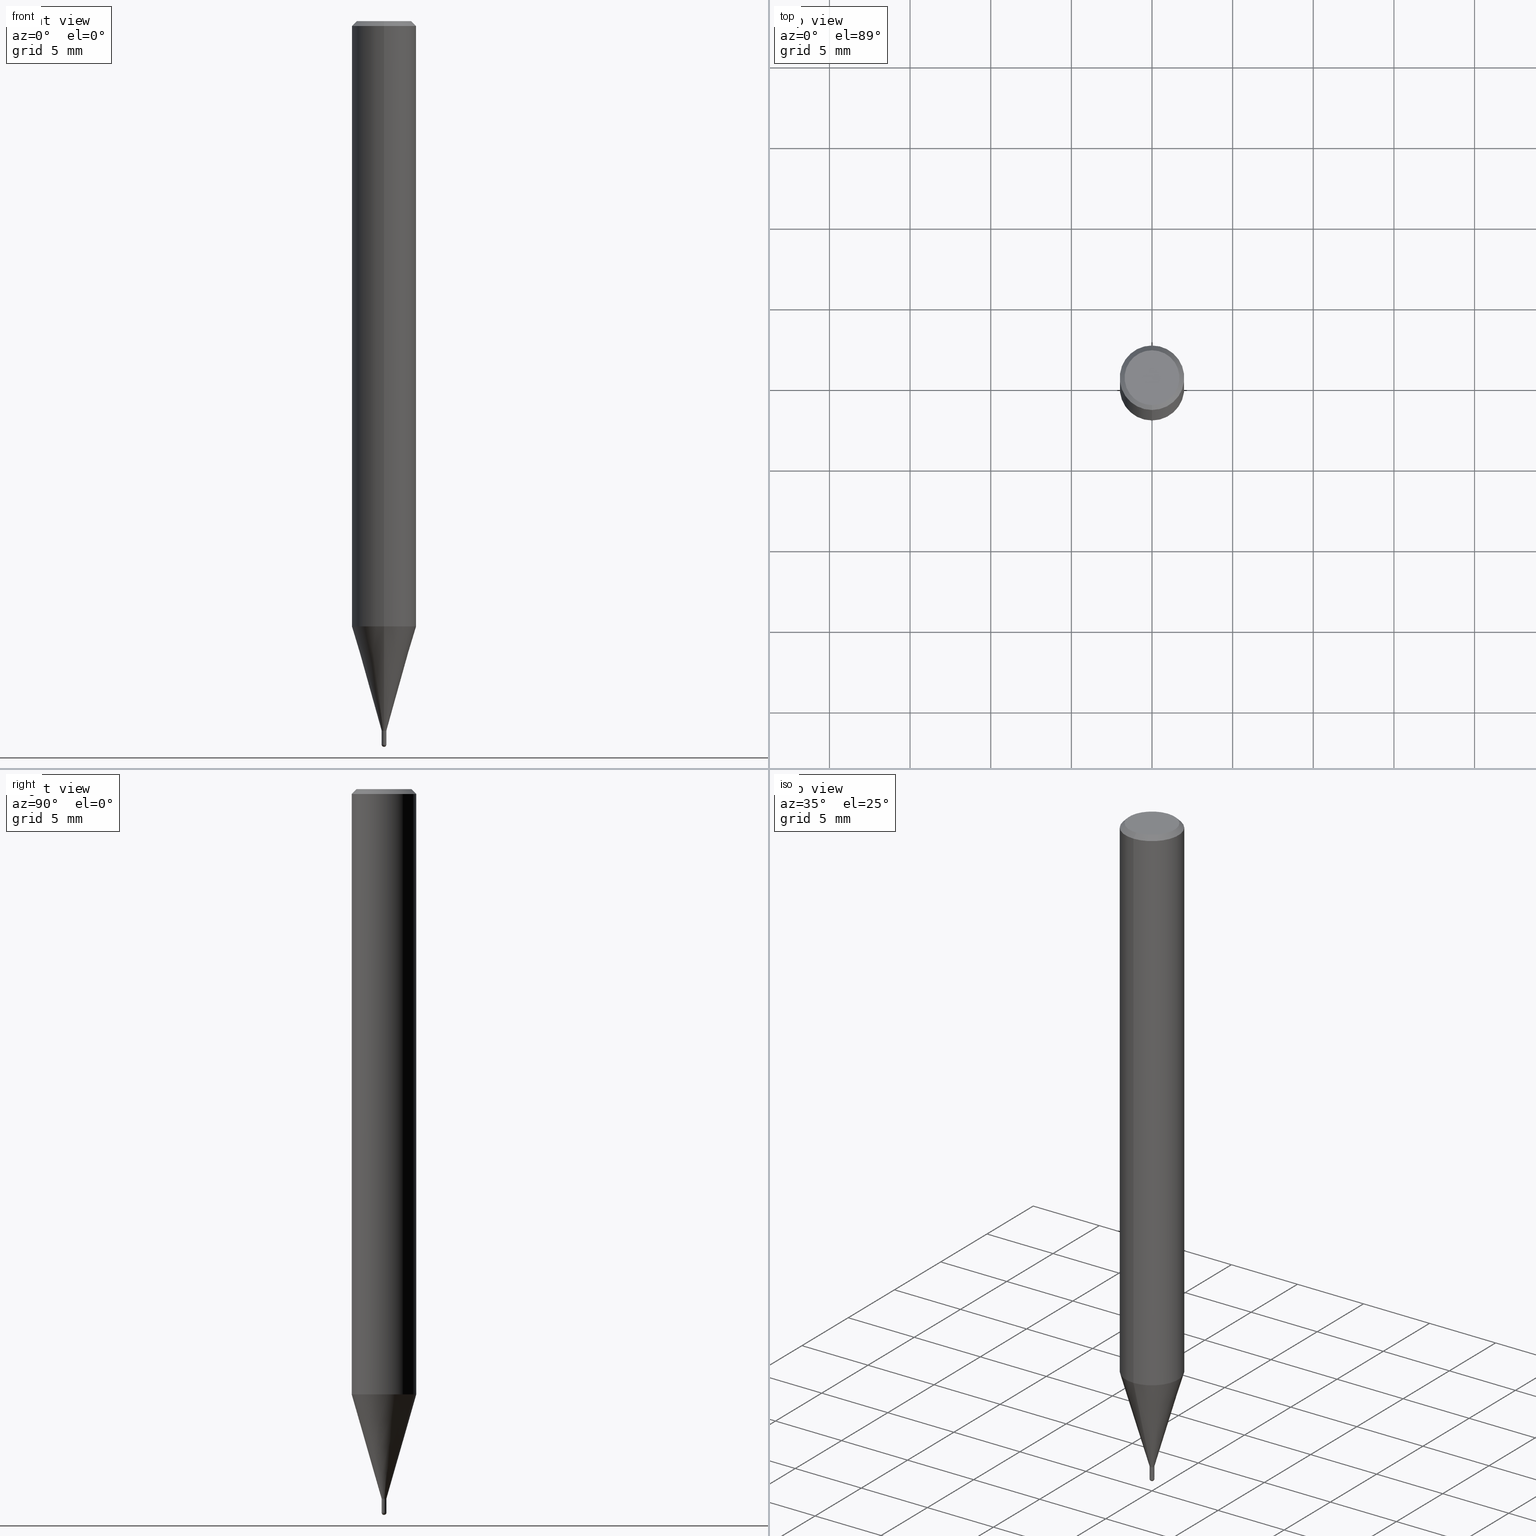
[diagram: canonical four-view strip — front | top / right | iso, engineering-drawing reading convention]
A machine part, canonical four-view strip (front | top / right | iso — engineering-drawing reading convention). The complete STEP part file that produces these views, byte-faithful:
ISO-10303-21;
HEADER;
FILE_DESCRIPTION(('no description'),'unknown implementation level');
FILE_NAME('HSLB2003-010-Huellk.stp','  ',('CIMSOURCE GmbH'),('CADClick - KiM GmbH - www.kimweb.de'),'unknown preprocess','ACIS','unknown authorization');
FILE_SCHEMA(('automotive_design'));
ENDSEC;
DATA;
#1=MECHANICAL_DESIGN_GEOMETRIC_PRESENTATION_REPRESENTATION(' ',(#14,#15,#16,#17,#18,#19,#20,#21,#22,#23,#24,#25,#26,#27,#28,#29,#30,#31,#32,#33,#34,#35,#36,#37,#38,#39,#40,#41,#42,#43,#44,#45,#46,#47,#48,#49,#50,#51,#52,#53,#54,#55,#56,#57,#58,#59,#60,#61,#62,#63,#64,#65,#66,#67,#68,#69,#70,#71,#72,#73,#74),#10);
#2=PRODUCT_DEFINITION_CONTEXT('',#75,'design');
#3=APPLICATION_PROTOCOL_DEFINITION('INTERNATIONAL STANDARD','automotive_design',1994,#75);
#4=PRODUCT_CATEGORY_RELATIONSHIP('NONE','NONE',#76,#77);
#5=SHAPE_DEFINITION_REPRESENTATION(#78,#79);
#6=PRODUCT_DEFINITION_CONTEXT('',#80,'design');
#7=APPLICATION_PROTOCOL_DEFINITION('INTERNATIONAL STANDARD','automotive_design',1994,#80);
#8=PRODUCT_CATEGORY_RELATIONSHIP('NONE','NONE',#81,#82);
#9=SHAPE_DEFINITION_REPRESENTATION(#83,#84);
#10= (GEOMETRIC_REPRESENTATION_CONTEXT(3)GLOBAL_UNCERTAINTY_ASSIGNED_CONTEXT((#87))GLOBAL_UNIT_ASSIGNED_CONTEXT((#89,#90,#91))REPRESENTATION_CONTEXT('NONE','WORKSPACE'));
#14=STYLED_ITEM('',(#93),#94);
#15=STYLED_ITEM('',(#95),#96);
#16=STYLED_ITEM('',(#97),#98);
#17=STYLED_ITEM('',(#99),#100);
#18=STYLED_ITEM('',(#101),#102);
#19=STYLED_ITEM('',(#103),#104);
#20=STYLED_ITEM('',(#105),#106);
#21=STYLED_ITEM('',(#107),#108);
#22=STYLED_ITEM('',(#109),#110);
#23=STYLED_ITEM('',(#111),#112);
#24=STYLED_ITEM('',(#113),#114);
#25=STYLED_ITEM('',(#115),#116);
#26=STYLED_ITEM('',(#117),#118);
#27=STYLED_ITEM('',(#119),#120);
#28=STYLED_ITEM('',(#121),#122);
#29=STYLED_ITEM('',(#123),#124);
#30=STYLED_ITEM('',(#125),#126);
#31=STYLED_ITEM('',(#127),#128);
#32=STYLED_ITEM('',(#129),#130);
#33=STYLED_ITEM('',(#131),#132);
#34=STYLED_ITEM('',(#133),#134);
#35=STYLED_ITEM('',(#135),#136);
#36=STYLED_ITEM('',(#137),#138);
#37=STYLED_ITEM('',(#139),#140);
#38=STYLED_ITEM('',(#141),#142);
#39=STYLED_ITEM('',(#143),#144);
#40=STYLED_ITEM('',(#145),#146);
#41=STYLED_ITEM('',(#147),#148);
#42=STYLED_ITEM('',(#149),#150);
#43=STYLED_ITEM('',(#151),#152);
#44=STYLED_ITEM('',(#153),#154);
#45=STYLED_ITEM('',(#155),#156);
#46=STYLED_ITEM('',(#157),#158);
#47=STYLED_ITEM('',(#159),#160);
#48=STYLED_ITEM('',(#161),#162);
#49=STYLED_ITEM('',(#163),#164);
#50=STYLED_ITEM('',(#165),#166);
#51=STYLED_ITEM('',(#167),#168);
#52=STYLED_ITEM('',(#169),#170);
#53=STYLED_ITEM('',(#171),#172);
#54=STYLED_ITEM('',(#173),#174);
#55=STYLED_ITEM('',(#175),#176);
#56=STYLED_ITEM('',(#177),#178);
#57=STYLED_ITEM('',(#179),#180);
#58=STYLED_ITEM('',(#181),#182);
#59=STYLED_ITEM('',(#183),#184);
#60=STYLED_ITEM('',(#185),#186);
#61=STYLED_ITEM('',(#187),#188);
#62=STYLED_ITEM('',(#189),#190);
#63=STYLED_ITEM('',(#191),#192);
#64=STYLED_ITEM('',(#193),#194);
#65=STYLED_ITEM('',(#195),#196);
#66=STYLED_ITEM('',(#197),#198);
#67=STYLED_ITEM('',(#199),#200);
#68=STYLED_ITEM('',(#201),#202);
#69=STYLED_ITEM('',(#203),#204);
#70=STYLED_ITEM('',(#205),#206);
#71=STYLED_ITEM('',(#207),#208);
#72=STYLED_ITEM('',(#209),#210);
#73=STYLED_ITEM('',(#211),#212);
#74=STYLED_ITEM('',(#213),#214);
#75=APPLICATION_CONTEXT(' ');
#76=PRODUCT_CATEGORY('part','NONE');
#77=PRODUCT_RELATED_PRODUCT_CATEGORY('detail',' ',(#215));
#78=PRODUCT_DEFINITION_SHAPE('NONE','NONE',#216);
#79=ADVANCED_BREP_SHAPE_REPRESENTATION('1',(#188,#217),#10);
#80=APPLICATION_CONTEXT(' ');
#81=PRODUCT_CATEGORY('part','NONE');
#82=PRODUCT_RELATED_PRODUCT_CATEGORY('detail',' ',(#218));
#83=PRODUCT_DEFINITION_SHAPE('NONE','NONE',#219);
#84=ADVANCED_BREP_SHAPE_REPRESENTATION('2',(#176,#220),#10);
#87=UNCERTAINTY_MEASURE_WITH_UNIT(LENGTH_MEASURE(1.0E-006),#89,'','');
#89= (CONVERSION_BASED_UNIT('MILLIMETRE',#223)LENGTH_UNIT()NAMED_UNIT(#226));
#90= (NAMED_UNIT(#228)PLANE_ANGLE_UNIT()SI_UNIT($,.RADIAN.));
#91= (NAMED_UNIT(#228)SOLID_ANGLE_UNIT()SI_UNIT($,.STERADIAN.));
#93=PRESENTATION_STYLE_ASSIGNMENT((#234));
#94=VERTEX_POINT('',#235);
#95=PRESENTATION_STYLE_ASSIGNMENT((#236));
#96=EDGE_CURVE('',#190,#186,#237,.T.);
#97=PRESENTATION_STYLE_ASSIGNMENT((#238));
#98=EDGE_CURVE('',#116,#100,#239,.T.);
#99=PRESENTATION_STYLE_ASSIGNMENT((#240));
#100=VERTEX_POINT('',#241);
#101=PRESENTATION_STYLE_ASSIGNMENT((#242));
#102=VERTEX_POINT('',#243);
#103=PRESENTATION_STYLE_ASSIGNMENT((#244));
#104=EDGE_CURVE('',#152,#136,#245,.T.);
#105=PRESENTATION_STYLE_ASSIGNMENT((#246));
#106=EDGE_CURVE('',#152,#102,#247,.T.);
#107=PRESENTATION_STYLE_ASSIGNMENT((#248));
#108=ADVANCED_FACE('',(#249),#250,.T.);
#109=PRESENTATION_STYLE_ASSIGNMENT((#251));
#110=ADVANCED_FACE('',(#252),#253,.T.);
#111=PRESENTATION_STYLE_ASSIGNMENT((#254));
#112=ADVANCED_FACE('',(#255),#256,.T.);
#113=PRESENTATION_STYLE_ASSIGNMENT((#257));
#114=VERTEX_POINT('',#258);
#115=PRESENTATION_STYLE_ASSIGNMENT((#259));
#116=VERTEX_POINT('',#260);
#117=PRESENTATION_STYLE_ASSIGNMENT((#261));
#118=EDGE_CURVE('',#116,#170,#262,.T.);
#119=PRESENTATION_STYLE_ASSIGNMENT((#263));
#120=EDGE_CURVE('',#184,#94,#264,.T.);
#121=PRESENTATION_STYLE_ASSIGNMENT((#265));
#122=EDGE_CURVE('',#156,#136,#266,.T.);
#123=PRESENTATION_STYLE_ASSIGNMENT((#267));
#124=ADVANCED_FACE('',(#268),#269,.T.);
#125=PRESENTATION_STYLE_ASSIGNMENT((#270));
#126=VERTEX_POINT('',#271);
#127=PRESENTATION_STYLE_ASSIGNMENT((#272));
#128=ADVANCED_FACE('',(#273),#274,.T.);
#129=PRESENTATION_STYLE_ASSIGNMENT((#275));
#130=ADVANCED_FACE('',(#276),#277,.T.);
#131=PRESENTATION_STYLE_ASSIGNMENT((#278));
#132=ADVANCED_FACE('',(#279),#280,.T.);
#133=PRESENTATION_STYLE_ASSIGNMENT((#281));
#134=EDGE_CURVE('',#136,#114,#282,.T.);
#135=PRESENTATION_STYLE_ASSIGNMENT((#283));
#136=VERTEX_POINT('',#284);
#137=PRESENTATION_STYLE_ASSIGNMENT((#285));
#138=EDGE_CURVE('',#170,#190,#286,.T.);
#139=PRESENTATION_STYLE_ASSIGNMENT((#287));
#140=VERTEX_POINT('',#288);
#141=PRESENTATION_STYLE_ASSIGNMENT((#289));
#142=EDGE_CURVE('',#114,#208,#290,.T.);
#143=PRESENTATION_STYLE_ASSIGNMENT((#291));
#144=ADVANCED_FACE('',(#292),#293,.T.);
#145=PRESENTATION_STYLE_ASSIGNMENT((#294));
#146=EDGE_CURVE('',#208,#156,#295,.T.);
#147=PRESENTATION_STYLE_ASSIGNMENT((#296));
#148=EDGE_CURVE('',#170,#116,#297,.T.);
#149=PRESENTATION_STYLE_ASSIGNMENT((#298));
#150=EDGE_CURVE('',#186,#116,#299,.T.);
#151=PRESENTATION_STYLE_ASSIGNMENT((#300));
#152=VERTEX_POINT('',#301);
#153=PRESENTATION_STYLE_ASSIGNMENT((#302));
#154=ADVANCED_FACE('',(#303),#304,.T.);
#155=PRESENTATION_STYLE_ASSIGNMENT((#305));
#156=VERTEX_POINT('',#306);
#157=PRESENTATION_STYLE_ASSIGNMENT((#307));
#158=EDGE_CURVE('',#196,#140,#308,.T.);
#159=PRESENTATION_STYLE_ASSIGNMENT((#309));
#160=ADVANCED_FACE('',(#310),#311,.T.);
#161=PRESENTATION_STYLE_ASSIGNMENT((#312));
#162=ADVANCED_FACE('',(#313),#314,.T.);
#163=PRESENTATION_STYLE_ASSIGNMENT((#315));
#164=ADVANCED_FACE('',(#316),#317,.T.);
#165=PRESENTATION_STYLE_ASSIGNMENT((#318));
#166=EDGE_CURVE('',#196,#184,#319,.T.);
#167=PRESENTATION_STYLE_ASSIGNMENT((#320));
#168=EDGE_CURVE('',#100,#126,#321,.T.);
#169=PRESENTATION_STYLE_ASSIGNMENT((#322));
#170=VERTEX_POINT('',#323);
#171=PRESENTATION_STYLE_ASSIGNMENT((#324));
#172=EDGE_CURVE('',#94,#184,#325,.T.);
#173=PRESENTATION_STYLE_ASSIGNMENT((#326));
#174=EDGE_CURVE('',#94,#140,#327,.T.);
#175=PRESENTATION_STYLE_ASSIGNMENT((#328));
#176=MANIFOLD_SOLID_BREP('2',#329);
#177=PRESENTATION_STYLE_ASSIGNMENT((#330));
#178=EDGE_CURVE('',#140,#196,#331,.T.);
#179=PRESENTATION_STYLE_ASSIGNMENT((#332));
#180=EDGE_CURVE('',#186,#190,#333,.T.);
#181=PRESENTATION_STYLE_ASSIGNMENT((#334));
#182=EDGE_CURVE('',#126,#170,#335,.T.);
#183=PRESENTATION_STYLE_ASSIGNMENT((#336));
#184=VERTEX_POINT('',#337);
#185=PRESENTATION_STYLE_ASSIGNMENT((#338));
#186=VERTEX_POINT('',#339);
#187=PRESENTATION_STYLE_ASSIGNMENT((#340));
#188=MANIFOLD_SOLID_BREP('1',#341);
#189=PRESENTATION_STYLE_ASSIGNMENT((#342));
#190=VERTEX_POINT('',#343);
#191=PRESENTATION_STYLE_ASSIGNMENT((#344));
#192=EDGE_CURVE('',#156,#102,#345,.T.);
#193=PRESENTATION_STYLE_ASSIGNMENT((#346));
#194=EDGE_CURVE('',#126,#100,#347,.T.);
#195=PRESENTATION_STYLE_ASSIGNMENT((#348));
#196=VERTEX_POINT('',#349);
#197=PRESENTATION_STYLE_ASSIGNMENT((#350));
#198=EDGE_CURVE('',#208,#114,#351,.T.);
#199=PRESENTATION_STYLE_ASSIGNMENT((#352));
#200=EDGE_CURVE('',#102,#152,#353,.T.);
#201=PRESENTATION_STYLE_ASSIGNMENT((#354));
#202=ADVANCED_FACE('',(#355),#356,.T.);
#203=PRESENTATION_STYLE_ASSIGNMENT((#357));
#204=EDGE_CURVE('',#136,#156,#358,.T.);
#205=PRESENTATION_STYLE_ASSIGNMENT((#359));
#206=EDGE_CURVE('',#94,#184,#360,.T.);
#207=PRESENTATION_STYLE_ASSIGNMENT((#361));
#208=VERTEX_POINT('',#362);
#209=PRESENTATION_STYLE_ASSIGNMENT((#363));
#210=ADVANCED_FACE('',(#364),#365,.T.);
#211=PRESENTATION_STYLE_ASSIGNMENT((#366));
#212=ADVANCED_FACE('',(#367,#368),#369,.T.);
#213=PRESENTATION_STYLE_ASSIGNMENT((#370));
#214=ADVANCED_FACE('',(#371),#372,.T.);
#215=PRODUCT('1','1','PART-1-DESC',(#373));
#216=PRODUCT_DEFINITION('NONE','NONE',#374,#2);
#217=AXIS2_PLACEMENT_3D('',#375,#376,#377);
#218=PRODUCT('2','2','PART-2-DESC',(#378));
#219=PRODUCT_DEFINITION('NONE','NONE',#379,#6);
#220=AXIS2_PLACEMENT_3D('',#380,#381,#382);
#223=LENGTH_MEASURE_WITH_UNIT(LENGTH_MEASURE(1.0),#383);
#226=DIMENSIONAL_EXPONENTS(1.0,0.0,0.0,0.0,0.0,0.0,0.0);
#228=DIMENSIONAL_EXPONENTS(0.0,0.0,0.0,0.0,0.0,0.0,0.0);
#234=POINT_STYLE(' ',#384,POSITIVE_LENGTH_MEASURE(1.0E-006),#385);
#235=CARTESIAN_POINT('',(1.83690953073356E-017,-0.15,-44.85));
#236=CURVE_STYLE('',#386,POSITIVE_LENGTH_MEASURE(1.0E-006),#387);
#237=CIRCLE('',#388,0.14495);
#238=CURVE_STYLE('',#389,POSITIVE_LENGTH_MEASURE(1.0E-006),#390);
#239=LINE('',#391,#392);
#240=POINT_STYLE(' ',#393,POSITIVE_LENGTH_MEASURE(1.0E-006),#394);
#241=CARTESIAN_POINT('',(2.44915147732706E-016,-1.99995,-37.531));
#242=POINT_STYLE(' ',#395,POSITIVE_LENGTH_MEASURE(1.0E-006),#396);
#243=CARTESIAN_POINT('',(2.08183080149804E-016,-1.7,0.0));
#244=CURVE_STYLE('',#397,POSITIVE_LENGTH_MEASURE(1.0E-006),#398);
#245=LINE('',#399,#400);
#246=CURVE_STYLE('',#401,POSITIVE_LENGTH_MEASURE(1.0E-006),#402);
#247=CIRCLE('',#403,1.7);
#248=SURFACE_STYLE_USAGE(.BOTH.,#404);
#249=FACE_OUTER_BOUND('',#405,.T.);
#250=SPHERICAL_SURFACE('',#406,0.15);
#251=SURFACE_STYLE_USAGE(.BOTH.,#407);
#252=FACE_OUTER_BOUND('',#408,.T.);
#253=CONICAL_SURFACE('',#409,0.14995,0.00111111065386396);
#254=SURFACE_STYLE_USAGE(.BOTH.,#410);
#255=FACE_OUTER_BOUND('',#411,.T.);
#256=SPHERICAL_SURFACE('',#412,0.15);
#257=POINT_STYLE(' ',#413,POSITIVE_LENGTH_MEASURE(1.0E-006),#414);
#258=CARTESIAN_POINT('',(0.0,2.0,-37.531));
#259=POINT_STYLE(' ',#415,POSITIVE_LENGTH_MEASURE(1.0E-006),#416);
#260=CARTESIAN_POINT('',(1.77506690986553E-017,-0.14495,-44.0));
#261=CURVE_STYLE('',#417,POSITIVE_LENGTH_MEASURE(1.0E-006),#418);
#262=CIRCLE('',#419,0.14495);
#263=CURVE_STYLE('',#420,POSITIVE_LENGTH_MEASURE(1.0E-006),#421);
#264=CIRCLE('',#422,0.15);
#265=CURVE_STYLE('',#423,POSITIVE_LENGTH_MEASURE(1.0E-006),#424);
#266=CIRCLE('',#425,2.0);
#267=SURFACE_STYLE_USAGE(.BOTH.,#426);
#268=FACE_OUTER_BOUND('',#427,.T.);
#269=CYLINDRICAL_SURFACE('',#428,2.0);
#270=POINT_STYLE(' ',#429,POSITIVE_LENGTH_MEASURE(1.0E-006),#430);
#271=CARTESIAN_POINT('',(0.0,1.99995,-37.531));
#272=SURFACE_STYLE_USAGE(.BOTH.,#431);
#273=FACE_OUTER_BOUND('',#432,.T.);
#274=PLANE('',#433);
#275=SURFACE_STYLE_USAGE(.BOTH.,#434);
#276=FACE_OUTER_BOUND('',#435,.T.);
#277=CYLINDRICAL_SURFACE('',#436,2.0);
#278=SURFACE_STYLE_USAGE(.BOTH.,#437);
#279=FACE_OUTER_BOUND('',#438,.T.);
#280=PLANE('',#439);
#281=CURVE_STYLE('',#440,POSITIVE_LENGTH_MEASURE(1.0E-006),#441);
#282=LINE('',#442,#443);
#283=POINT_STYLE(' ',#444,POSITIVE_LENGTH_MEASURE(1.0E-006),#445);
#284=CARTESIAN_POINT('',(0.0,2.0,-0.299999999999997));
#285=CURVE_STYLE('',#446,POSITIVE_LENGTH_MEASURE(1.0E-006),#447);
#286=LINE('',#448,#449);
#287=POINT_STYLE(' ',#450,POSITIVE_LENGTH_MEASURE(1.0E-006),#451);
#288=CARTESIAN_POINT('',(1.83568492437974E-017,-0.1499,-44.76));
#289=CURVE_STYLE('',#452,POSITIVE_LENGTH_MEASURE(1.0E-006),#453);
#290=CIRCLE('',#454,2.0);
#291=SURFACE_STYLE_USAGE(.BOTH.,#455);
#292=FACE_OUTER_BOUND('',#456,.T.);
#293=PLANE('',#457);
#294=CURVE_STYLE('',#458,POSITIVE_LENGTH_MEASURE(1.0E-006),#459);
#295=LINE('',#460,#461);
#296=CURVE_STYLE('',#462,POSITIVE_LENGTH_MEASURE(1.0E-006),#463);
#297=CIRCLE('',#464,0.14495);
#298=CURVE_STYLE('',#465,POSITIVE_LENGTH_MEASURE(1.0E-006),#466);
#299=LINE('',#467,#468);
#300=POINT_STYLE(' ',#469,POSITIVE_LENGTH_MEASURE(1.0E-006),#470);
#301=CARTESIAN_POINT('',(0.0,1.7,0.0));
#302=SURFACE_STYLE_USAGE(.BOTH.,#471);
#303=FACE_OUTER_BOUND('',#472,.T.);
#304=CONICAL_SURFACE('',#473,1.07245,0.279258979430111);
#305=POINT_STYLE(' ',#474,POSITIVE_LENGTH_MEASURE(1.0E-006),#475);
#306=CARTESIAN_POINT('',(2.44921270764475E-016,-2.0,-0.299999999999997));
#307=CURVE_STYLE('',#476,POSITIVE_LENGTH_MEASURE(1.0E-006),#477);
#308=CIRCLE('',#478,0.1499);
#309=SURFACE_STYLE_USAGE(.BOTH.,#479);
#310=FACE_OUTER_BOUND('',#480,.T.);
#311=CYLINDRICAL_SURFACE('',#481,0.14495);
#312=SURFACE_STYLE_USAGE(.BOTH.,#482);
#313=FACE_OUTER_BOUND('',#483,.T.);
#314=CONICAL_SURFACE('',#484,1.07245,0.279258979430111);
#315=SURFACE_STYLE_USAGE(.BOTH.,#485);
#316=FACE_OUTER_BOUND('',#486,.T.);
#317=CONICAL_SURFACE('',#487,1.85,0.785398163397453);
#318=CURVE_STYLE('',#488,POSITIVE_LENGTH_MEASURE(1.0E-006),#489);
#319=LINE('',#490,#491);
#320=CURVE_STYLE('',#492,POSITIVE_LENGTH_MEASURE(1.0E-006),#493);
#321=CIRCLE('',#494,1.99995);
#322=POINT_STYLE(' ',#495,POSITIVE_LENGTH_MEASURE(1.0E-006),#496);
#323=CARTESIAN_POINT('',(0.0,0.14495,-44.0));
#324=CURVE_STYLE('',#497,POSITIVE_LENGTH_MEASURE(1.0E-006),#498);
#325=CIRCLE('',#499,0.15);
#326=CURVE_STYLE('',#500,POSITIVE_LENGTH_MEASURE(1.0E-006),#501);
#327=LINE('',#502,#503);
#328=SURFACE_STYLE_USAGE(.BOTH.,#504);
#329=CLOSED_SHELL('',(#108,#202,#128,#110,#112));
#330=CURVE_STYLE('',#505,POSITIVE_LENGTH_MEASURE(1.0E-006),#506);
#331=CIRCLE('',#507,0.1499);
#332=CURVE_STYLE('',#508,POSITIVE_LENGTH_MEASURE(1.0E-006),#509);
#333=CIRCLE('',#510,0.14495);
#334=CURVE_STYLE('',#511,POSITIVE_LENGTH_MEASURE(1.0E-006),#512);
#335=LINE('',#513,#514);
#336=POINT_STYLE(' ',#515,POSITIVE_LENGTH_MEASURE(1.0E-006),#516);
#337=CARTESIAN_POINT('',(0.0,0.15,-44.85));
#338=POINT_STYLE(' ',#517,POSITIVE_LENGTH_MEASURE(1.0E-006),#518);
#339=CARTESIAN_POINT('',(1.77506690986554E-017,-0.14495,-44.76));
#340=SURFACE_STYLE_USAGE(.BOTH.,#519);
#341=CLOSED_SHELL('',(#160,#154,#130,#164,#212,#132,#214,#124,#162,#210,#144));
#342=POINT_STYLE(' ',#520,POSITIVE_LENGTH_MEASURE(1.0E-006),#521);
#343=CARTESIAN_POINT('',(0.0,0.14495,-44.76));
#344=CURVE_STYLE('',#522,POSITIVE_LENGTH_MEASURE(1.0E-006),#523);
#345=LINE('',#524,#525);
#346=CURVE_STYLE('',#526,POSITIVE_LENGTH_MEASURE(1.0E-006),#527);
#347=CIRCLE('',#528,1.99995);
#348=POINT_STYLE(' ',#529,POSITIVE_LENGTH_MEASURE(1.0E-006),#530);
#349=CARTESIAN_POINT('',(0.0,0.1499,-44.76));
#350=CURVE_STYLE('',#531,POSITIVE_LENGTH_MEASURE(1.0E-006),#532);
#351=CIRCLE('',#533,2.0);
#352=CURVE_STYLE('',#534,POSITIVE_LENGTH_MEASURE(1.0E-006),#535);
#353=CIRCLE('',#536,1.7);
#354=SURFACE_STYLE_USAGE(.BOTH.,#537);
#355=FACE_OUTER_BOUND('',#538,.T.);
#356=CONICAL_SURFACE('',#539,0.14995,0.00111111065386396);
#357=CURVE_STYLE('',#540,POSITIVE_LENGTH_MEASURE(1.0E-006),#541);
#358=CIRCLE('',#542,2.0);
#359=CURVE_STYLE('',#543,POSITIVE_LENGTH_MEASURE(1.0E-006),#544);
#360=CIRCLE('',#545,0.15);
#361=POINT_STYLE(' ',#546,POSITIVE_LENGTH_MEASURE(1.0E-006),#547);
#362=CARTESIAN_POINT('',(2.44921270764475E-016,-2.0,-37.531));
#363=SURFACE_STYLE_USAGE(.BOTH.,#548);
#364=FACE_OUTER_BOUND('',#549,.T.);
#365=CYLINDRICAL_SURFACE('',#550,0.14495);
#366=SURFACE_STYLE_USAGE(.BOTH.,#551);
#367=FACE_OUTER_BOUND('',#552,.T.);
#368=FACE_BOUND('',#553,.T.);
#369=PLANE('',#554);
#370=SURFACE_STYLE_USAGE(.BOTH.,#555);
#371=FACE_OUTER_BOUND('',#556,.T.);
#372=CONICAL_SURFACE('',#557,1.85,0.785398163397453);
#373=PRODUCT_CONTEXT('',#75,'mechanical');
#374=PRODUCT_DEFINITION_FORMATION_WITH_SPECIFIED_SOURCE(' ','NONE',#215,.NOT_KNOWN.);
#375=CARTESIAN_POINT('',(0.0,0.0,0.0));
#376=DIRECTION('',(0.0,0.0,1.0));
#377=DIRECTION('',(1.0,0.0,0.0));
#378=PRODUCT_CONTEXT('',#80,'mechanical');
#379=PRODUCT_DEFINITION_FORMATION_WITH_SPECIFIED_SOURCE(' ','NONE',#218,.NOT_KNOWN.);
#380=CARTESIAN_POINT('',(0.0,0.0,0.0));
#381=DIRECTION('',(0.0,0.0,1.0));
#382=DIRECTION('',(1.0,0.0,0.0));
#383= (NAMED_UNIT(#226)LENGTH_UNIT()SI_UNIT(.MILLI.,.METRE.));
#384=PRE_DEFINED_MARKER('');
#385=COLOUR_RGB('',0.800000011920929,0.800000011920929,0.800000011920929);
#386=DRAUGHTING_PRE_DEFINED_CURVE_FONT('continuous');
#387=COLOUR_RGB('',0.498039215803146,0.498039215803146,0.498039215803146);
#388=AXIS2_PLACEMENT_3D('',#559,#560,#561);
#389=DRAUGHTING_PRE_DEFINED_CURVE_FONT('continuous');
#390=COLOUR_RGB('',0.498039215803146,0.498039215803146,0.498039215803146);
#391=CARTESIAN_POINT('',(1.31332908415681E-016,-1.07245,-40.7655));
#392=VECTOR('',#562,1.0);
#393=PRE_DEFINED_MARKER('');
#394=COLOUR_RGB('',0.498039215803146,0.498039215803146,0.498039215803146);
#395=PRE_DEFINED_MARKER('');
#396=COLOUR_RGB('',0.498039215803146,0.498039215803146,0.498039215803146);
#397=DRAUGHTING_PRE_DEFINED_CURVE_FONT('continuous');
#398=COLOUR_RGB('',0.498039215803146,0.498039215803146,0.498039215803146);
#399=CARTESIAN_POINT('',(-2.2655217545714E-016,1.85,-0.149999999999999));
#400=VECTOR('',#563,1.0);
#401=DRAUGHTING_PRE_DEFINED_CURVE_FONT('continuous');
#402=COLOUR_RGB('',0.498039215803146,0.498039215803146,0.498039215803146);
#403=AXIS2_PLACEMENT_3D('',#564,#565,#566);
#404=SURFACE_SIDE_STYLE('',(#567));
#405=EDGE_LOOP('',(#568,#569));
#406=AXIS2_PLACEMENT_3D('',#570,#571,#572);
#407=SURFACE_SIDE_STYLE('',(#573));
#408=EDGE_LOOP('',(#574,#575,#576,#577));
#409=AXIS2_PLACEMENT_3D('',#578,#579,#580);
#410=SURFACE_SIDE_STYLE('',(#581));
#411=EDGE_LOOP('',(#582,#583));
#412=AXIS2_PLACEMENT_3D('',#584,#585,#586);
#413=PRE_DEFINED_MARKER('');
#414=COLOUR_RGB('',0.498039215803146,0.498039215803146,0.498039215803146);
#415=PRE_DEFINED_MARKER('');
#416=COLOUR_RGB('',0.498039215803146,0.498039215803146,0.498039215803146);
#417=DRAUGHTING_PRE_DEFINED_CURVE_FONT('continuous');
#418=COLOUR_RGB('',0.498039215803146,0.498039215803146,0.498039215803146);
#419=AXIS2_PLACEMENT_3D('',#587,#588,#589);
#420=DRAUGHTING_PRE_DEFINED_CURVE_FONT('continuous');
#421=COLOUR_RGB('',0.800000011920929,0.800000011920929,0.800000011920929);
#422=AXIS2_PLACEMENT_3D('',#590,#591,#592);
#423=DRAUGHTING_PRE_DEFINED_CURVE_FONT('continuous');
#424=COLOUR_RGB('',0.498039215803146,0.498039215803146,0.498039215803146);
#425=AXIS2_PLACEMENT_3D('',#593,#594,#595);
#426=SURFACE_SIDE_STYLE('',(#596));
#427=EDGE_LOOP('',(#597,#598,#599,#600));
#428=AXIS2_PLACEMENT_3D('',#601,#602,#603);
#429=PRE_DEFINED_MARKER('');
#430=COLOUR_RGB('',0.498039215803146,0.498039215803146,0.498039215803146);
#431=SURFACE_SIDE_STYLE('',(#604));
#432=EDGE_LOOP('',(#605,#606));
#433=AXIS2_PLACEMENT_3D('',#607,#608,#609);
#434=SURFACE_SIDE_STYLE('',(#610));
#435=EDGE_LOOP('',(#611,#612,#613,#614));
#436=AXIS2_PLACEMENT_3D('',#615,#616,#617);
#437=SURFACE_SIDE_STYLE('',(#618));
#438=EDGE_LOOP('',(#619,#620));
#439=AXIS2_PLACEMENT_3D('',#621,#622,#623);
#440=DRAUGHTING_PRE_DEFINED_CURVE_FONT('continuous');
#441=COLOUR_RGB('',0.498039215803146,0.498039215803146,0.498039215803146);
#442=CARTESIAN_POINT('',(-2.44921270764475E-016,2.0,-18.9155));
#443=VECTOR('',#624,1.0);
#444=PRE_DEFINED_MARKER('');
#445=COLOUR_RGB('',0.498039215803146,0.498039215803146,0.498039215803146);
#446=DRAUGHTING_PRE_DEFINED_CURVE_FONT('continuous');
#447=COLOUR_RGB('',0.498039215803146,0.498039215803146,0.498039215803146);
#448=CARTESIAN_POINT('',(-1.77506690986554E-017,0.14495,-44.38));
#449=VECTOR('',#625,1.0);
#450=PRE_DEFINED_MARKER('');
#451=COLOUR_RGB('',0.800000011920929,0.800000011920929,0.800000011920929);
#452=DRAUGHTING_PRE_DEFINED_CURVE_FONT('continuous');
#453=COLOUR_RGB('',0.498039215803146,0.498039215803146,0.498039215803146);
#454=AXIS2_PLACEMENT_3D('',#626,#627,#628);
#455=SURFACE_SIDE_STYLE('',(#629));
#456=EDGE_LOOP('',(#630,#631));
#457=AXIS2_PLACEMENT_3D('',#632,#633,#634);
#458=DRAUGHTING_PRE_DEFINED_CURVE_FONT('continuous');
#459=COLOUR_RGB('',0.498039215803146,0.498039215803146,0.498039215803146);
#460=CARTESIAN_POINT('',(2.44921270764475E-016,-2.0,-18.9155));
#461=VECTOR('',#635,1.0);
#462=DRAUGHTING_PRE_DEFINED_CURVE_FONT('continuous');
#463=COLOUR_RGB('',0.498039215803146,0.498039215803146,0.498039215803146);
#464=AXIS2_PLACEMENT_3D('',#636,#637,#638);
#465=DRAUGHTING_PRE_DEFINED_CURVE_FONT('continuous');
#466=COLOUR_RGB('',0.498039215803146,0.498039215803146,0.498039215803146);
#467=CARTESIAN_POINT('',(1.77506690986554E-017,-0.14495,-44.38));
#468=VECTOR('',#639,1.0);
#469=PRE_DEFINED_MARKER('');
#470=COLOUR_RGB('',0.498039215803146,0.498039215803146,0.498039215803146);
#471=SURFACE_SIDE_STYLE('',(#640));
#472=EDGE_LOOP('',(#641,#642,#643,#644));
#473=AXIS2_PLACEMENT_3D('',#645,#646,#647);
#474=PRE_DEFINED_MARKER('');
#475=COLOUR_RGB('',0.498039215803146,0.498039215803146,0.498039215803146);
#476=DRAUGHTING_PRE_DEFINED_CURVE_FONT('continuous');
#477=COLOUR_RGB('',0.800000011920929,0.800000011920929,0.800000011920929);
#478=AXIS2_PLACEMENT_3D('',#648,#649,#650);
#479=SURFACE_SIDE_STYLE('',(#651));
#480=EDGE_LOOP('',(#652,#653,#654,#655));
#481=AXIS2_PLACEMENT_3D('',#656,#657,#658);
#482=SURFACE_SIDE_STYLE('',(#659));
#483=EDGE_LOOP('',(#660,#661,#662,#663));
#484=AXIS2_PLACEMENT_3D('',#664,#665,#666);
#485=SURFACE_SIDE_STYLE('',(#667));
#486=EDGE_LOOP('',(#668,#669,#670,#671));
#487=AXIS2_PLACEMENT_3D('',#672,#673,#674);
#488=DRAUGHTING_PRE_DEFINED_CURVE_FONT('continuous');
#489=COLOUR_RGB('',0.800000011920929,0.800000011920929,0.800000011920929);
#490=CARTESIAN_POINT('',(-1.83629722755665E-017,0.14995,-44.805));
#491=VECTOR('',#675,1.0);
#492=DRAUGHTING_PRE_DEFINED_CURVE_FONT('continuous');
#493=COLOUR_RGB('',0.498039215803146,0.498039215803146,0.498039215803146);
#494=AXIS2_PLACEMENT_3D('',#676,#677,#678);
#495=PRE_DEFINED_MARKER('');
#496=COLOUR_RGB('',0.498039215803146,0.498039215803146,0.498039215803146);
#497=DRAUGHTING_PRE_DEFINED_CURVE_FONT('continuous');
#498=COLOUR_RGB('',0.800000011920929,0.800000011920929,0.800000011920929);
#499=AXIS2_PLACEMENT_3D('',#679,#680,#681);
#500=DRAUGHTING_PRE_DEFINED_CURVE_FONT('continuous');
#501=COLOUR_RGB('',0.800000011920929,0.800000011920929,0.800000011920929);
#502=CARTESIAN_POINT('',(1.83629722755665E-017,-0.14995,-44.805));
#503=VECTOR('',#682,1.0);
#504=SURFACE_SIDE_STYLE('',(#683));
#505=DRAUGHTING_PRE_DEFINED_CURVE_FONT('continuous');
#506=COLOUR_RGB('',0.800000011920929,0.800000011920929,0.800000011920929);
#507=AXIS2_PLACEMENT_3D('',#684,#685,#686);
#508=DRAUGHTING_PRE_DEFINED_CURVE_FONT('continuous');
#509=COLOUR_RGB('',0.498039215803146,0.498039215803146,0.498039215803146);
#510=AXIS2_PLACEMENT_3D('',#687,#688,#689);
#511=DRAUGHTING_PRE_DEFINED_CURVE_FONT('continuous');
#512=COLOUR_RGB('',0.498039215803146,0.498039215803146,0.498039215803146);
#513=CARTESIAN_POINT('',(-1.31332908415681E-016,1.07245,-40.7655));
#514=VECTOR('',#690,1.0);
#515=PRE_DEFINED_MARKER('');
#516=COLOUR_RGB('',0.800000011920929,0.800000011920929,0.800000011920929);
#517=PRE_DEFINED_MARKER('');
#518=COLOUR_RGB('',0.498039215803146,0.498039215803146,0.498039215803146);
#519=SURFACE_SIDE_STYLE('',(#691));
#520=PRE_DEFINED_MARKER('');
#521=COLOUR_RGB('',0.498039215803146,0.498039215803146,0.498039215803146);
#522=DRAUGHTING_PRE_DEFINED_CURVE_FONT('continuous');
#523=COLOUR_RGB('',0.498039215803146,0.498039215803146,0.498039215803146);
#524=CARTESIAN_POINT('',(2.2655217545714E-016,-1.85,-0.149999999999999));
#525=VECTOR('',#692,1.0);
#526=DRAUGHTING_PRE_DEFINED_CURVE_FONT('continuous');
#527=COLOUR_RGB('',0.498039215803146,0.498039215803146,0.498039215803146);
#528=AXIS2_PLACEMENT_3D('',#693,#694,#695);
#529=PRE_DEFINED_MARKER('');
#530=COLOUR_RGB('',0.800000011920929,0.800000011920929,0.800000011920929);
#531=DRAUGHTING_PRE_DEFINED_CURVE_FONT('continuous');
#532=COLOUR_RGB('',0.498039215803146,0.498039215803146,0.498039215803146);
#533=AXIS2_PLACEMENT_3D('',#696,#697,#698);
#534=DRAUGHTING_PRE_DEFINED_CURVE_FONT('continuous');
#535=COLOUR_RGB('',0.498039215803146,0.498039215803146,0.498039215803146);
#536=AXIS2_PLACEMENT_3D('',#699,#700,#701);
#537=SURFACE_SIDE_STYLE('',(#702));
#538=EDGE_LOOP('',(#703,#704,#705,#706));
#539=AXIS2_PLACEMENT_3D('',#707,#708,#709);
#540=DRAUGHTING_PRE_DEFINED_CURVE_FONT('continuous');
#541=COLOUR_RGB('',0.498039215803146,0.498039215803146,0.498039215803146);
#542=AXIS2_PLACEMENT_3D('',#710,#711,#712);
#543=DRAUGHTING_PRE_DEFINED_CURVE_FONT('continuous');
#544=COLOUR_RGB('',0.800000011920929,0.800000011920929,0.800000011920929);
#545=AXIS2_PLACEMENT_3D('',#713,#714,#715);
#546=PRE_DEFINED_MARKER('');
#547=COLOUR_RGB('',0.498039215803146,0.498039215803146,0.498039215803146);
#548=SURFACE_SIDE_STYLE('',(#716));
#549=EDGE_LOOP('',(#717,#718,#719,#720));
#550=AXIS2_PLACEMENT_3D('',#721,#722,#723);
#551=SURFACE_SIDE_STYLE('',(#724));
#552=EDGE_LOOP('',(#725,#726));
#553=EDGE_LOOP('',(#727,#728));
#554=AXIS2_PLACEMENT_3D('',#729,#730,#731);
#555=SURFACE_SIDE_STYLE('',(#732));
#556=EDGE_LOOP('',(#733,#734,#735,#736));
#557=AXIS2_PLACEMENT_3D('',#737,#738,#739);
#559=CARTESIAN_POINT('',(0.0,0.0,-44.76));
#560=DIRECTION('',(0.0,0.0,-1.0));
#561=DIRECTION('',(0.0,1.0,0.0));
#562=DIRECTION('',(3.37554672384358E-017,-0.275643410905672,0.961259959648943));
#563=DIRECTION('',(-8.6592745707194E-017,0.707106781186551,-0.707106781186544));
#564=CARTESIAN_POINT('',(0.0,0.0,0.0));
#565=DIRECTION('',(0.0,0.0,-1.0));
#566=DIRECTION('',(0.0,1.0,0.0));
#567=SURFACE_STYLE_FILL_AREA(#740);
#568=ORIENTED_EDGE('',*,*,#172,.F.);
#569=ORIENTED_EDGE('',*,*,#206,.T.);
#570=CARTESIAN_POINT('',(0.0,0.0,-44.85));
#571=DIRECTION('',(0.0,1.0,0.0));
#572=DIRECTION('',(0.0,0.0,-1.0));
#573=SURFACE_STYLE_FILL_AREA(#741);
#574=ORIENTED_EDGE('',*,*,#166,.T.);
#575=ORIENTED_EDGE('',*,*,#206,.F.);
#576=ORIENTED_EDGE('',*,*,#174,.T.);
#577=ORIENTED_EDGE('',*,*,#178,.T.);
#578=CARTESIAN_POINT('',(0.0,0.0,-44.805));
#579=DIRECTION('',(0.0,-0.0,-1.0));
#580=DIRECTION('',(0.0,1.0,0.0));
#581=SURFACE_STYLE_FILL_AREA(#742);
#582=ORIENTED_EDGE('',*,*,#172,.T.);
#583=ORIENTED_EDGE('',*,*,#120,.T.);
#584=CARTESIAN_POINT('',(0.0,0.0,-44.85));
#585=DIRECTION('',(0.0,1.0,0.0));
#586=DIRECTION('',(0.0,0.0,-1.0));
#587=CARTESIAN_POINT('',(0.0,0.0,-44.0));
#588=DIRECTION('',(0.0,0.0,-1.0));
#589=DIRECTION('',(0.0,1.0,0.0));
#590=CARTESIAN_POINT('',(0.0,0.0,-44.85));
#591=DIRECTION('',(0.0,0.0,-1.0));
#592=DIRECTION('',(0.0,1.0,0.0));
#593=CARTESIAN_POINT('',(0.0,0.0,-0.299999999999997));
#594=DIRECTION('',(0.0,0.0,-1.0));
#595=DIRECTION('',(0.0,1.0,0.0));
#596=SURFACE_STYLE_FILL_AREA(#743);
#597=ORIENTED_EDGE('',*,*,#134,.T.);
#598=ORIENTED_EDGE('',*,*,#198,.F.);
#599=ORIENTED_EDGE('',*,*,#146,.T.);
#600=ORIENTED_EDGE('',*,*,#122,.T.);
#601=CARTESIAN_POINT('',(0.0,0.0,-18.9155));
#602=DIRECTION('',(-0.0,-0.0,1.0));
#603=DIRECTION('',(0.0,1.0,0.0));
#604=SURFACE_STYLE_FILL_AREA(#744);
#605=ORIENTED_EDGE('',*,*,#158,.F.);
#606=ORIENTED_EDGE('',*,*,#178,.F.);
#607=CARTESIAN_POINT('',(0.0,0.07495,-44.76));
#608=DIRECTION('',(-0.0,0.0,1.0));
#609=DIRECTION('',(0.0,-1.0,0.0));
#610=SURFACE_STYLE_FILL_AREA(#745);
#611=ORIENTED_EDGE('',*,*,#134,.F.);
#612=ORIENTED_EDGE('',*,*,#204,.T.);
#613=ORIENTED_EDGE('',*,*,#146,.F.);
#614=ORIENTED_EDGE('',*,*,#142,.F.);
#615=CARTESIAN_POINT('',(0.0,0.0,-18.9155));
#616=DIRECTION('',(-0.0,-0.0,1.0));
#617=DIRECTION('',(0.0,1.0,0.0));
#618=SURFACE_STYLE_FILL_AREA(#746);
#619=ORIENTED_EDGE('',*,*,#106,.F.);
#620=ORIENTED_EDGE('',*,*,#200,.F.);
#621=CARTESIAN_POINT('',(0.0,0.85,0.0));
#622=DIRECTION('',(-0.0,0.0,1.0));
#623=DIRECTION('',(0.0,-1.0,0.0));
#624=DIRECTION('',(0.0,0.0,-1.0));
#625=DIRECTION('',(0.0,0.0,-1.0));
#626=CARTESIAN_POINT('',(0.0,0.0,-37.531));
#627=DIRECTION('',(0.0,0.0,-1.0));
#628=DIRECTION('',(0.0,1.0,0.0));
#629=SURFACE_STYLE_FILL_AREA(#747);
#630=ORIENTED_EDGE('',*,*,#96,.T.);
#631=ORIENTED_EDGE('',*,*,#180,.T.);
#632=CARTESIAN_POINT('',(0.0,0.072475,-44.76));
#633=DIRECTION('',(0.0,0.0,-1.0));
#634=DIRECTION('',(0.0,1.0,0.0));
#635=DIRECTION('',(-0.0,-0.0,1.0));
#636=CARTESIAN_POINT('',(0.0,0.0,-44.0));
#637=DIRECTION('',(0.0,0.0,-1.0));
#638=DIRECTION('',(0.0,1.0,0.0));
#639=DIRECTION('',(-0.0,-0.0,1.0));
#640=SURFACE_STYLE_FILL_AREA(#748);
#641=ORIENTED_EDGE('',*,*,#182,.F.);
#642=ORIENTED_EDGE('',*,*,#194,.T.);
#643=ORIENTED_EDGE('',*,*,#98,.F.);
#644=ORIENTED_EDGE('',*,*,#148,.F.);
#645=CARTESIAN_POINT('',(0.0,0.0,-40.7655));
#646=DIRECTION('',(-0.0,-0.0,1.0));
#647=DIRECTION('',(0.0,1.0,0.0));
#648=CARTESIAN_POINT('',(0.0,0.0,-44.76));
#649=DIRECTION('',(0.0,0.0,-1.0));
#650=DIRECTION('',(0.0,1.0,0.0));
#651=SURFACE_STYLE_FILL_AREA(#749);
#652=ORIENTED_EDGE('',*,*,#138,.F.);
#653=ORIENTED_EDGE('',*,*,#148,.T.);
#654=ORIENTED_EDGE('',*,*,#150,.F.);
#655=ORIENTED_EDGE('',*,*,#96,.F.);
#656=CARTESIAN_POINT('',(0.0,0.0,-44.38));
#657=DIRECTION('',(-0.0,-0.0,1.0));
#658=DIRECTION('',(0.0,1.0,0.0));
#659=SURFACE_STYLE_FILL_AREA(#750);
#660=ORIENTED_EDGE('',*,*,#182,.T.);
#661=ORIENTED_EDGE('',*,*,#118,.F.);
#662=ORIENTED_EDGE('',*,*,#98,.T.);
#663=ORIENTED_EDGE('',*,*,#168,.T.);
#664=CARTESIAN_POINT('',(0.0,0.0,-40.7655));
#665=DIRECTION('',(-0.0,-0.0,1.0));
#666=DIRECTION('',(0.0,1.0,0.0));
#667=SURFACE_STYLE_FILL_AREA(#751);
#668=ORIENTED_EDGE('',*,*,#104,.F.);
#669=ORIENTED_EDGE('',*,*,#106,.T.);
#670=ORIENTED_EDGE('',*,*,#192,.F.);
#671=ORIENTED_EDGE('',*,*,#204,.F.);
#672=CARTESIAN_POINT('',(0.0,0.0,-0.149999999999999));
#673=DIRECTION('',(0.0,-0.0,-1.0));
#674=DIRECTION('',(0.0,1.0,0.0));
#675=DIRECTION('',(-1.36067288654788E-019,0.00111111042524057,-0.999999382716621));
#676=CARTESIAN_POINT('',(0.0,0.0,-37.531));
#677=DIRECTION('',(0.0,0.0,-1.0));
#678=DIRECTION('',(0.0,1.0,0.0));
#679=CARTESIAN_POINT('',(0.0,0.0,-44.85));
#680=DIRECTION('',(1.0,0.0,1.22460635382239E-016));
#681=DIRECTION('',(-1.22460635382239E-016,0.0,1.0));
#682=DIRECTION('',(-1.36067288654788E-019,0.00111111042524057,0.999999382716621));
#683=SURFACE_STYLE_FILL_AREA(#752);
#684=CARTESIAN_POINT('',(0.0,0.0,-44.76));
#685=DIRECTION('',(0.0,0.0,-1.0));
#686=DIRECTION('',(0.0,1.0,0.0));
#687=CARTESIAN_POINT('',(0.0,0.0,-44.76));
#688=DIRECTION('',(0.0,0.0,-1.0));
#689=DIRECTION('',(0.0,1.0,0.0));
#690=DIRECTION('',(3.37554672384358E-017,-0.275643410905672,-0.961259959648943));
#691=SURFACE_STYLE_FILL_AREA(#753);
#692=DIRECTION('',(-8.6592745707194E-017,0.707106781186551,0.707106781186544));
#693=CARTESIAN_POINT('',(0.0,0.0,-37.531));
#694=DIRECTION('',(0.0,0.0,-1.0));
#695=DIRECTION('',(0.0,1.0,0.0));
#696=CARTESIAN_POINT('',(0.0,0.0,-37.531));
#697=DIRECTION('',(0.0,0.0,-1.0));
#698=DIRECTION('',(0.0,1.0,0.0));
#699=CARTESIAN_POINT('',(0.0,0.0,0.0));
#700=DIRECTION('',(0.0,0.0,-1.0));
#701=DIRECTION('',(0.0,1.0,0.0));
#702=SURFACE_STYLE_FILL_AREA(#754);
#703=ORIENTED_EDGE('',*,*,#166,.F.);
#704=ORIENTED_EDGE('',*,*,#158,.T.);
#705=ORIENTED_EDGE('',*,*,#174,.F.);
#706=ORIENTED_EDGE('',*,*,#120,.F.);
#707=CARTESIAN_POINT('',(0.0,0.0,-44.805));
#708=DIRECTION('',(0.0,-0.0,-1.0));
#709=DIRECTION('',(0.0,1.0,0.0));
#710=CARTESIAN_POINT('',(0.0,0.0,-0.299999999999997));
#711=DIRECTION('',(0.0,0.0,-1.0));
#712=DIRECTION('',(0.0,1.0,0.0));
#713=CARTESIAN_POINT('',(0.0,0.0,-44.85));
#714=DIRECTION('',(0.0,0.0,-1.0));
#715=DIRECTION('',(0.0,1.0,0.0));
#716=SURFACE_STYLE_FILL_AREA(#755);
#717=ORIENTED_EDGE('',*,*,#138,.T.);
#718=ORIENTED_EDGE('',*,*,#180,.F.);
#719=ORIENTED_EDGE('',*,*,#150,.T.);
#720=ORIENTED_EDGE('',*,*,#118,.T.);
#721=CARTESIAN_POINT('',(0.0,0.0,-44.38));
#722=DIRECTION('',(-0.0,-0.0,1.0));
#723=DIRECTION('',(0.0,1.0,0.0));
#724=SURFACE_STYLE_FILL_AREA(#756);
#725=ORIENTED_EDGE('',*,*,#142,.T.);
#726=ORIENTED_EDGE('',*,*,#198,.T.);
#727=ORIENTED_EDGE('',*,*,#194,.F.);
#728=ORIENTED_EDGE('',*,*,#168,.F.);
#729=CARTESIAN_POINT('',(0.0,1.0,-37.531));
#730=DIRECTION('',(0.0,0.0,-1.0));
#731=DIRECTION('',(0.0,1.0,0.0));
#732=SURFACE_STYLE_FILL_AREA(#757);
#733=ORIENTED_EDGE('',*,*,#104,.T.);
#734=ORIENTED_EDGE('',*,*,#122,.F.);
#735=ORIENTED_EDGE('',*,*,#192,.T.);
#736=ORIENTED_EDGE('',*,*,#200,.T.);
#737=CARTESIAN_POINT('',(0.0,0.0,-0.149999999999999));
#738=DIRECTION('',(0.0,-0.0,-1.0));
#739=DIRECTION('',(0.0,1.0,0.0));
#740=FILL_AREA_STYLE('',(#758));
#741=FILL_AREA_STYLE('',(#759));
#742=FILL_AREA_STYLE('',(#760));
#743=FILL_AREA_STYLE('',(#761));
#744=FILL_AREA_STYLE('',(#762));
#745=FILL_AREA_STYLE('',(#763));
#746=FILL_AREA_STYLE('',(#764));
#747=FILL_AREA_STYLE('',(#765));
#748=FILL_AREA_STYLE('',(#766));
#749=FILL_AREA_STYLE('',(#767));
#750=FILL_AREA_STYLE('',(#768));
#751=FILL_AREA_STYLE('',(#769));
#752=FILL_AREA_STYLE('',(#770));
#753=FILL_AREA_STYLE('',(#771));
#754=FILL_AREA_STYLE('',(#772));
#755=FILL_AREA_STYLE('',(#773));
#756=FILL_AREA_STYLE('',(#774));
#757=FILL_AREA_STYLE('',(#775));
#758=FILL_AREA_STYLE_COLOUR('',#776);
#759=FILL_AREA_STYLE_COLOUR('',#777);
#760=FILL_AREA_STYLE_COLOUR('',#778);
#761=FILL_AREA_STYLE_COLOUR('',#779);
#762=FILL_AREA_STYLE_COLOUR('',#780);
#763=FILL_AREA_STYLE_COLOUR('',#781);
#764=FILL_AREA_STYLE_COLOUR('',#782);
#765=FILL_AREA_STYLE_COLOUR('',#783);
#766=FILL_AREA_STYLE_COLOUR('',#784);
#767=FILL_AREA_STYLE_COLOUR('',#785);
#768=FILL_AREA_STYLE_COLOUR('',#786);
#769=FILL_AREA_STYLE_COLOUR('',#787);
#770=FILL_AREA_STYLE_COLOUR('',#788);
#771=FILL_AREA_STYLE_COLOUR('',#789);
#772=FILL_AREA_STYLE_COLOUR('',#790);
#773=FILL_AREA_STYLE_COLOUR('',#791);
#774=FILL_AREA_STYLE_COLOUR('',#792);
#775=FILL_AREA_STYLE_COLOUR('',#793);
#776=COLOUR_RGB('',0.800000011920929,0.800000011920929,0.800000011920929);
#777=COLOUR_RGB('',0.800000011920929,0.800000011920929,0.800000011920929);
#778=COLOUR_RGB('',0.800000011920929,0.800000011920929,0.800000011920929);
#779=COLOUR_RGB('',0.498039215803146,0.498039215803146,0.498039215803146);
#780=COLOUR_RGB('',0.800000011920929,0.800000011920929,0.800000011920929);
#781=COLOUR_RGB('',0.498039215803146,0.498039215803146,0.498039215803146);
#782=COLOUR_RGB('',0.498039215803146,0.498039215803146,0.498039215803146);
#783=COLOUR_RGB('',0.498039215803146,0.498039215803146,0.498039215803146);
#784=COLOUR_RGB('',0.498039215803146,0.498039215803146,0.498039215803146);
#785=COLOUR_RGB('',0.498039215803146,0.498039215803146,0.498039215803146);
#786=COLOUR_RGB('',0.498039215803146,0.498039215803146,0.498039215803146);
#787=COLOUR_RGB('',0.498039215803146,0.498039215803146,0.498039215803146);
#788=COLOUR_RGB('',0.800000011920929,0.800000011920929,0.800000011920929);
#789=COLOUR_RGB('',0.498039215803146,0.498039215803146,0.498039215803146);
#790=COLOUR_RGB('',0.800000011920929,0.800000011920929,0.800000011920929);
#791=COLOUR_RGB('',0.498039215803146,0.498039215803146,0.498039215803146);
#792=COLOUR_RGB('',0.498039215803146,0.498039215803146,0.498039215803146);
#793=COLOUR_RGB('',0.498039215803146,0.498039215803146,0.498039215803146);
#794=AXIS2_PLACEMENT_3D('PCS',#795,#796,#797);
#795=CARTESIAN_POINT('',(0.0,0.0,0.0));
#796=DIRECTION('',(0.0,0.0,1.0));
#797=DIRECTION('',(1.0,0.0,0.0));
#798=AXIS2_PLACEMENT_3D('CIP',#799,#800,#801);
#799=CARTESIAN_POINT('',(0.0,0.0,-45.0));
#800=DIRECTION('',(0.0,0.0,1.0));
#801=DIRECTION('',(1.0,0.0,0.0));
#802=AXIS2_PLACEMENT_3D('CRP',#803,#804,#805);
#803=CARTESIAN_POINT('',(-0.15,0.0,-45.0));
#804=DIRECTION('',(0.0,0.0,1.0));
#805=DIRECTION('',(1.0,0.0,0.0));
#806=AXIS2_PLACEMENT_3D('MCS',#807,#808,#809);
#807=CARTESIAN_POINT('',(0.0,0.0,-37.531));
#808=DIRECTION('',(0.0,0.0,1.0));
#809=DIRECTION('',(1.0,0.0,0.0));
#810=CONSTRUCTIVE_GEOMETRY_REPRESENTATION_RELATIONSHIP('coordinate systems',$,#79,#811);
#811=CONSTRUCTIVE_GEOMETRY_REPRESENTATION('coordinate systems',(#794,#798,#802,#806),#10);
ENDSEC;
END-ISO-10303-21;
